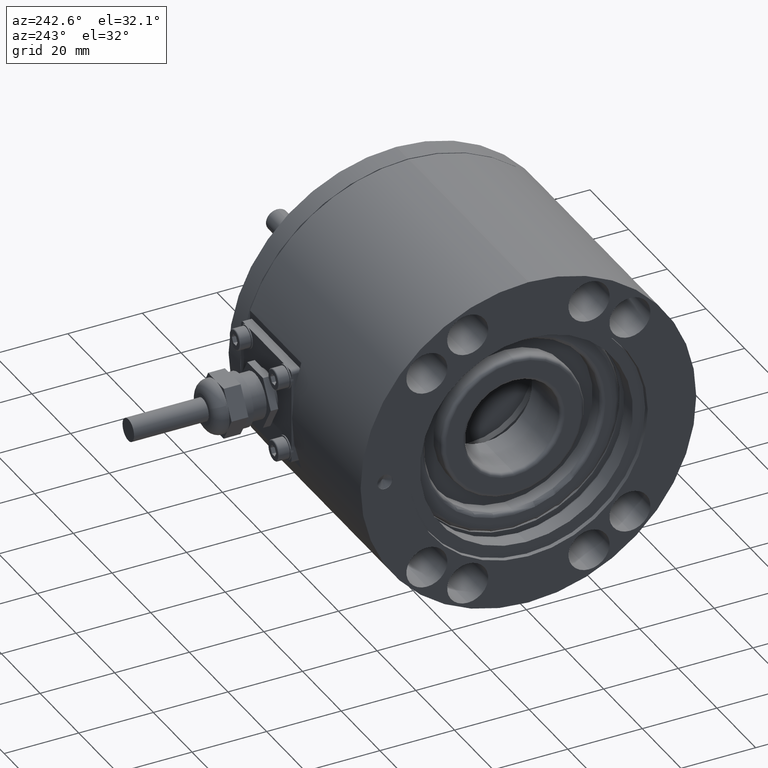
[diagram: clean part render]
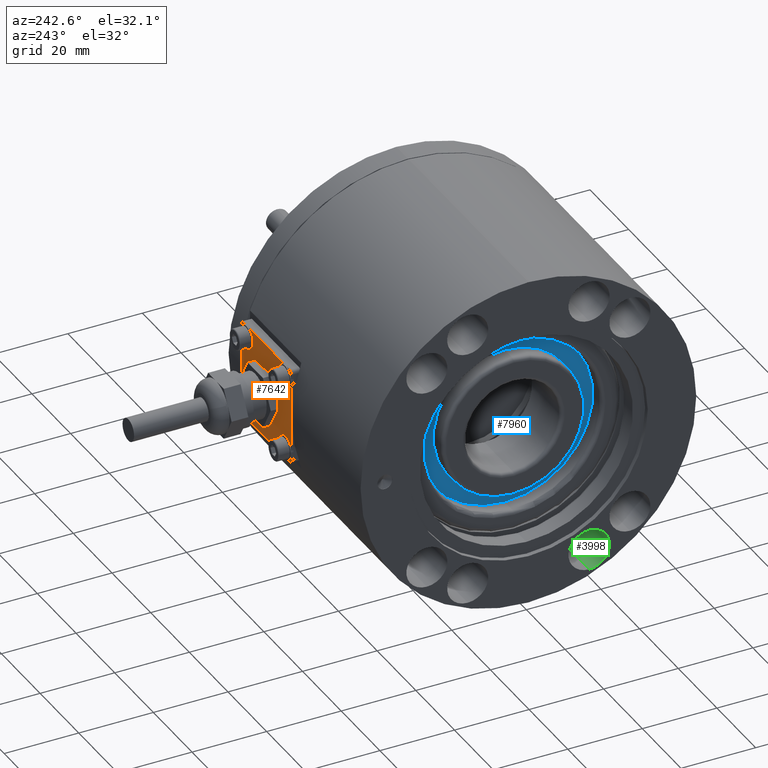
[diagram: same view with three faces highlighted in distinct colors, each labeled with its STEP entity id]
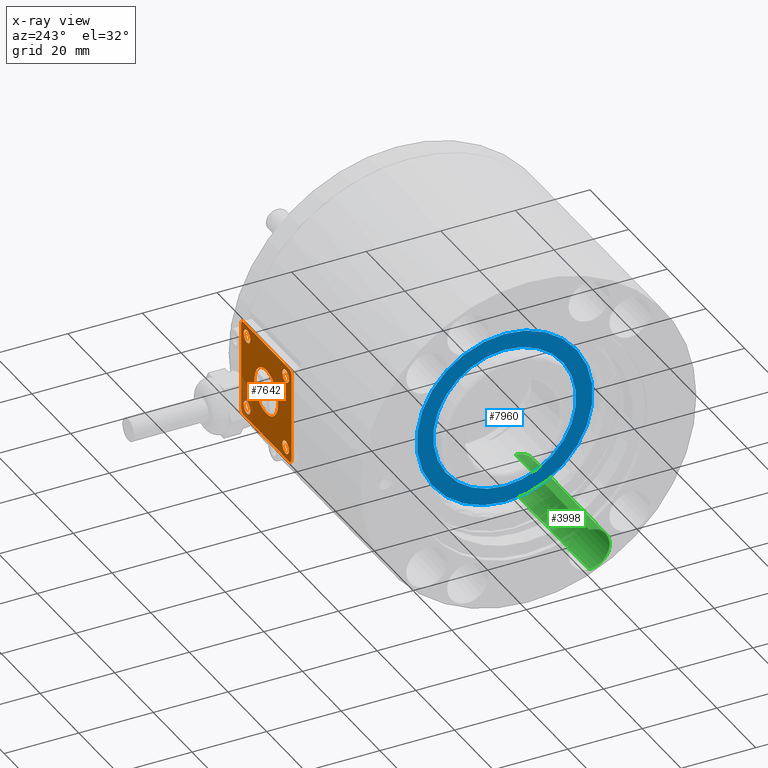
[diagram: x-ray of the same camera — body ghosted, the three highlighted faces saturated]
A machine part, auxiliary view with three faces highlighted in distinct colors.
The next image is the same camera in x-ray (body ghosted, the three faces saturated) — at least one of them is partly hidden behind the body in this view.
Their STEP definitions:

[orange] entity #7642 — the highlighted planar face has unit normal (0, -1, 0).
#121 = EDGE_CURVE ( 'NONE', #182, #11927, #5776, .T. ) ;
#123 = CARTESIAN_POINT ( 'NONE',  ( -13.00000000000000178, 2.500000000000000000, 13.00000000000000000 ) ) ;
#131 = VECTOR ( 'NONE', #6193, 1000.000000000000000 ) ;
#137 = CARTESIAN_POINT ( 'NONE',  ( 0.000000000000000000, 2.499999999999999556, 0.000000000000000000 ) ) ;
#182 = VERTEX_POINT ( 'NONE', #2924 ) ;
#183 = DIRECTION ( 'NONE',  ( -0.000000000000000000, 1.000000000000000000, -0.000000000000000000 ) ) ;
#194 = VERTEX_POINT ( 'NONE', #10874 ) ;
#224 = AXIS2_PLACEMENT_3D ( 'NONE', #10218, #9118, #11181 ) ;
#296 = DIRECTION ( 'NONE',  ( 0.000000000000000000, 0.000000000000000000, 1.000000000000000000 ) ) ;
#697 = LINE ( 'NONE', #123, #9123 ) ;
#700 = VERTEX_POINT ( 'NONE', #8213 ) ;
#716 = EDGE_CURVE ( 'NONE', #2170, #9778, #6384, .T. ) ;
#806 = ORIENTED_EDGE ( 'NONE', *, *, #10214, .F. ) ;
#841 = DIRECTION ( 'NONE',  ( -0.000000000000000000, 1.000000000000000000, -0.000000000000000000 ) ) ;
#902 = EDGE_LOOP ( 'NONE', ( #8514, #3500, #12865, #10524, #8346, #7243, #2664, #12493 ) ) ;
#915 = AXIS2_PLACEMENT_3D ( 'NONE', #7581, #8578, #3451 ) ;
#1004 = VERTEX_POINT ( 'NONE', #9812 ) ;
#1045 = DIRECTION ( 'NONE',  ( -0.000000000000000000, 1.000000000000000000, -0.000000000000000000 ) ) ;
#1071 = CIRCLE ( 'NONE', #3214, 6.099999999999999645 ) ;
#1139 = DIRECTION ( 'NONE',  ( -0.000000000000000000, -0.000000000000000000, 1.000000000000000000 ) ) ;
#1195 = VECTOR ( 'NONE', #9218, 1000.000000000000000 ) ;
#1421 = CIRCLE ( 'NONE', #915, 1.699999999999996625 ) ;
#1454 = DIRECTION ( 'NONE',  ( 0.000000000000000000, -1.000000000000000000, 0.000000000000000000 ) ) ;
#1541 = DIRECTION ( 'NONE',  ( 0.000000000000000000, 0.000000000000000000, 1.000000000000000000 ) ) ;
#1687 = VERTEX_POINT ( 'NONE', #10969 ) ;
#1751 = EDGE_CURVE ( 'NONE', #7032, #2843, #6198, .T. ) ;
#1771 = AXIS2_PLACEMENT_3D ( 'NONE', #11382, #11430, #12346 ) ;
#1956 = DIRECTION ( 'NONE',  ( 0.000000000000000000, 0.000000000000000000, 1.000000000000000000 ) ) ;
#2006 = DIRECTION ( 'NONE',  ( 0.000000000000000000, 0.000000000000000000, 1.000000000000000000 ) ) ;
#2064 = CARTESIAN_POINT ( 'NONE',  ( 12.99999999999999822, 2.500000000000000000, 13.00000000000000178 ) ) ;
#2077 = CIRCLE ( 'NONE', #9001, 0.9999999999999991118 ) ;
#2170 = VERTEX_POINT ( 'NONE', #2949 ) ;
#2477 = EDGE_CURVE ( 'NONE', #700, #194, #11213, .T. ) ;
#2519 = ORIENTED_EDGE ( 'NONE', *, *, #4530, .F. ) ;
#2596 = CARTESIAN_POINT ( 'NONE',  ( -12.00000000000000000, 2.500000000000000000, 13.00000000000000000 ) ) ;
#2664 = ORIENTED_EDGE ( 'NONE', *, *, #8667, .T. ) ;
#2673 = VERTEX_POINT ( 'NONE', #12394 ) ;
#2683 = CIRCLE ( 'NONE', #4496, 1.000000000000000888 ) ;
#2843 = VERTEX_POINT ( 'NONE', #5715 ) ;
#2885 = AXIS2_PLACEMENT_3D ( 'NONE', #7074, #1045, #1956 ) ;
#2904 = VERTEX_POINT ( 'NONE', #4859 ) ;
#2924 = CARTESIAN_POINT ( 'NONE',  ( 13.00000000000000000, 2.500000000000000000, -12.00000000000000000 ) ) ;
#2927 = AXIS2_PLACEMENT_3D ( 'NONE', #9674, #4378, #7416 ) ;
#2949 = CARTESIAN_POINT ( 'NONE',  ( 7.470345474798854293E-16, 2.499999999999999556, -6.099999999999999645 ) ) ;
#3125 = EDGE_CURVE ( 'NONE', #1687, #182, #6349, .T. ) ;
#3214 = AXIS2_PLACEMENT_3D ( 'NONE', #137, #183, #2006 ) ;
#3243 = ORIENTED_EDGE ( 'NONE', *, *, #6490, .F. ) ;
#3328 = CIRCLE ( 'NONE', #5262, 1.699999999999996625 ) ;
#3346 = CARTESIAN_POINT ( 'NONE',  ( -10.00000000000000000, 2.500000000000000000, -9.999999999999998224 ) ) ;
#3451 = DIRECTION ( 'NONE',  ( 0.000000000000000000, 0.000000000000000000, 1.000000000000000000 ) ) ;
#3494 = DIRECTION ( 'NONE',  ( 0.000000000000000000, 0.000000000000000000, 1.000000000000000000 ) ) ;
#3500 = ORIENTED_EDGE ( 'NONE', *, *, #6072, .T. ) ;
#3580 = CARTESIAN_POINT ( 'NONE',  ( -10.00000000000000000, 2.500000000000000000, 10.00000000000000000 ) ) ;
#3666 = CARTESIAN_POINT ( 'NONE',  ( 0.000000000000000000, 2.499999999999999556, 6.099999999999999645 ) ) ;
#3797 = CIRCLE ( 'NONE', #4223, 1.699999999999996625 ) ;
#3887 = VERTEX_POINT ( 'NONE', #10414 ) ;
#4167 = DIRECTION ( 'NONE',  ( 0.000000000000000000, 0.000000000000000000, 1.000000000000000000 ) ) ;
#4223 = AXIS2_PLACEMENT_3D ( 'NONE', #3580, #8662, #1541 ) ;
#4378 = DIRECTION ( 'NONE',  ( -0.000000000000000000, 1.000000000000000000, -0.000000000000000000 ) ) ;
#4496 = AXIS2_PLACEMENT_3D ( 'NONE', #12941, #6837, #12897 ) ;
#4504 = EDGE_LOOP ( 'NONE', ( #9936, #7967 ) ) ;
#4530 = EDGE_CURVE ( 'NONE', #2673, #2904, #3797, .T. ) ;
#4625 = PLANE ( 'NONE',  #8007 ) ;
#4714 = EDGE_CURVE ( 'NONE', #11568, #7527, #2077, .T. ) ;
#4859 = CARTESIAN_POINT ( 'NONE',  ( -10.00000000000000000, 2.500000000000000000, 11.69999999999999751 ) ) ;
#5006 = VERTEX_POINT ( 'NONE', #10223 ) ;
#5262 = AXIS2_PLACEMENT_3D ( 'NONE', #9034, #12225, #4167 ) ;
#5701 = EDGE_LOOP ( 'NONE', ( #12242, #10698 ) ) ;
#5715 = CARTESIAN_POINT ( 'NONE',  ( 11.99999999999998934, 2.500000000000000000, 13.00000000000000178 ) ) ;
#5776 = CIRCLE ( 'NONE', #2927, 1.000000000000000888 ) ;
#5991 = AXIS2_PLACEMENT_3D ( 'NONE', #3346, #9205, #296 ) ;
#6033 = CIRCLE ( 'NONE', #224, 1.699999999999996625 ) ;
#6072 = EDGE_CURVE ( 'NONE', #12232, #7032, #2683, .T. ) ;
#6193 = DIRECTION ( 'NONE',  ( -1.000000000000000000, -0.000000000000000000, -0.000000000000000000 ) ) ;
#6198 = LINE ( 'NONE', #9302, #1195 ) ;
#6274 = EDGE_LOOP ( 'NONE', ( #7636, #9753 ) ) ;
#6349 = LINE ( 'NONE', #2064, #9785 ) ;
#6384 = CIRCLE ( 'NONE', #1771, 6.099999999999999645 ) ;
#6442 = CARTESIAN_POINT ( 'NONE',  ( 0.000000000000000000, 2.500000000000000000, 0.000000000000000000 ) ) ;
#6490 = EDGE_CURVE ( 'NONE', #1004, #5006, #1421, .T. ) ;
#6568 = CARTESIAN_POINT ( 'NONE',  ( 11.99999999999999645, 2.500000000000000000, 12.00000000000000178 ) ) ;
#6657 = CARTESIAN_POINT ( 'NONE',  ( -13.00000000000000178, 2.500000000000000000, 12.00000000000000000 ) ) ;
#6684 = FACE_BOUND ( 'NONE', #7007, .T. ) ;
#6837 = DIRECTION ( 'NONE',  ( -0.000000000000000000, 1.000000000000000000, -0.000000000000000000 ) ) ;
#6918 = CARTESIAN_POINT ( 'NONE',  ( -12.00000000000000000, 2.500000000000000000, -13.00000000000000000 ) ) ;
#6985 = CIRCLE ( 'NONE', #8516, 0.9999999999999991118 ) ;
#6992 = AXIS2_PLACEMENT_3D ( 'NONE', #8530, #7483, #3494 ) ;
#7007 = EDGE_LOOP ( 'NONE', ( #806, #2519 ) ) ;
#7032 = VERTEX_POINT ( 'NONE', #2596 ) ;
#7074 = CARTESIAN_POINT ( 'NONE',  ( -10.00000000000000000, 2.500000000000000000, -9.999999999999998224 ) ) ;
#7243 = ORIENTED_EDGE ( 'NONE', *, *, #121, .T. ) ;
#7416 = DIRECTION ( 'NONE',  ( 0.000000000000000000, 0.000000000000000000, -1.000000000000000000 ) ) ;
#7483 = DIRECTION ( 'NONE',  ( -0.000000000000000000, 1.000000000000000000, -0.000000000000000000 ) ) ;
#7527 = VERTEX_POINT ( 'NONE', #12327 ) ;
#7581 = CARTESIAN_POINT ( 'NONE',  ( 10.00000000000000000, 2.500000000000000000, -9.999999999999998224 ) ) ;
#7606 = DIRECTION ( 'NONE',  ( 0.000000000000000000, 0.000000000000000000, 1.000000000000000000 ) ) ;
#7636 = ORIENTED_EDGE ( 'NONE', *, *, #9328, .F. ) ;
#7642 = ADVANCED_FACE ( 'NONE', ( #12462, #12760, #6684, #9497, #9644, #9311 ), #4625, .F. ) ;
#7967 = ORIENTED_EDGE ( 'NONE', *, *, #10537, .F. ) ;
#8007 = AXIS2_PLACEMENT_3D ( 'NONE', #6442, #1454, #11505 ) ;
#8213 = CARTESIAN_POINT ( 'NONE',  ( -10.00000000000000000, 2.500000000000000000, -8.300000000000002487 ) ) ;
#8346 = ORIENTED_EDGE ( 'NONE', *, *, #3125, .T. ) ;
#8433 = LINE ( 'NONE', #8980, #131 ) ;
#8514 = ORIENTED_EDGE ( 'NONE', *, *, #12534, .T. ) ;
#8516 = AXIS2_PLACEMENT_3D ( 'NONE', #6568, #10482, #9490 ) ;
#8530 = CARTESIAN_POINT ( 'NONE',  ( -10.00000000000000000, 2.500000000000000000, 10.00000000000000000 ) ) ;
#8553 = CIRCLE ( 'NONE', #2885, 1.699999999999996625 ) ;
#8578 = DIRECTION ( 'NONE',  ( -0.000000000000000000, 1.000000000000000000, -0.000000000000000000 ) ) ;
#8662 = DIRECTION ( 'NONE',  ( -0.000000000000000000, 1.000000000000000000, -0.000000000000000000 ) ) ;
#8667 = EDGE_CURVE ( 'NONE', #11927, #11568, #8433, .T. ) ;
#8980 = CARTESIAN_POINT ( 'NONE',  ( -13.00000000000000178, 2.500000000000000000, -13.00000000000000000 ) ) ;
#9001 = AXIS2_PLACEMENT_3D ( 'NONE', #12841, #841, #12721 ) ;
#9034 = CARTESIAN_POINT ( 'NONE',  ( 10.00000000000000000, 2.500000000000000000, 10.00000000000000178 ) ) ;
#9059 = DIRECTION ( 'NONE',  ( 6.672013369141565463E-17, 0.000000000000000000, -1.000000000000000000 ) ) ;
#9100 = ORIENTED_EDGE ( 'NONE', *, *, #12798, .F. ) ;
#9118 = DIRECTION ( 'NONE',  ( -0.000000000000000000, 1.000000000000000000, -0.000000000000000000 ) ) ;
#9123 = VECTOR ( 'NONE', #1139, 1000.000000000000000 ) ;
#9205 = DIRECTION ( 'NONE',  ( -0.000000000000000000, 1.000000000000000000, -0.000000000000000000 ) ) ;
#9218 = DIRECTION ( 'NONE',  ( 1.000000000000000000, 0.000000000000000000, 6.672013369141566696E-17 ) ) ;
#9263 = CARTESIAN_POINT ( 'NONE',  ( 11.99999999999999645, 2.500000000000000000, -13.00000000000000000 ) ) ;
#9302 = CARTESIAN_POINT ( 'NONE',  ( -13.00000000000000178, 2.500000000000000000, 13.00000000000000000 ) ) ;
#9311 = FACE_BOUND ( 'NONE', #10984, .T. ) ;
#9328 = EDGE_CURVE ( 'NONE', #9778, #2170, #1071, .T. ) ;
#9490 = DIRECTION ( 'NONE',  ( 0.000000000000000000, 0.000000000000000000, -1.000000000000000000 ) ) ;
#9497 = FACE_OUTER_BOUND ( 'NONE', #902, .T. ) ;
#9644 = FACE_BOUND ( 'NONE', #4504, .T. ) ;
#9674 = CARTESIAN_POINT ( 'NONE',  ( 11.99999999999999645, 2.500000000000000000, -12.00000000000000000 ) ) ;
#9753 = ORIENTED_EDGE ( 'NONE', *, *, #716, .F. ) ;
#9778 = VERTEX_POINT ( 'NONE', #3666 ) ;
#9785 = VECTOR ( 'NONE', #9059, 1000.000000000000000 ) ;
#9812 = CARTESIAN_POINT ( 'NONE',  ( 10.00000000000000000, 2.500000000000000000, -11.69999999999999574 ) ) ;
#9936 = ORIENTED_EDGE ( 'NONE', *, *, #2477, .F. ) ;
#10042 = CARTESIAN_POINT ( 'NONE',  ( 10.00000000000000000, 2.500000000000000000, 11.69999999999999929 ) ) ;
#10175 = EDGE_CURVE ( 'NONE', #2843, #1687, #6985, .T. ) ;
#10214 = EDGE_CURVE ( 'NONE', #2904, #2673, #12764, .T. ) ;
#10218 = CARTESIAN_POINT ( 'NONE',  ( 10.00000000000000000, 2.500000000000000000, 10.00000000000000178 ) ) ;
#10223 = CARTESIAN_POINT ( 'NONE',  ( 10.00000000000000000, 2.500000000000000000, -8.300000000000002487 ) ) ;
#10414 = CARTESIAN_POINT ( 'NONE',  ( 10.00000000000000000, 2.500000000000000000, 8.300000000000006040 ) ) ;
#10482 = DIRECTION ( 'NONE',  ( -0.000000000000000000, 1.000000000000000000, -0.000000000000000000 ) ) ;
#10520 = CIRCLE ( 'NONE', #11623, 1.699999999999996625 ) ;
#10524 = ORIENTED_EDGE ( 'NONE', *, *, #10175, .T. ) ;
#10537 = EDGE_CURVE ( 'NONE', #194, #700, #8553, .T. ) ;
#10548 = VERTEX_POINT ( 'NONE', #10042 ) ;
#10650 = CARTESIAN_POINT ( 'NONE',  ( 10.00000000000000000, 2.500000000000000000, -9.999999999999998224 ) ) ;
#10698 = ORIENTED_EDGE ( 'NONE', *, *, #10716, .F. ) ;
#10716 = EDGE_CURVE ( 'NONE', #3887, #10548, #6033, .T. ) ;
#10874 = CARTESIAN_POINT ( 'NONE',  ( -10.00000000000000000, 2.500000000000000000, -11.69999999999999574 ) ) ;
#10969 = CARTESIAN_POINT ( 'NONE',  ( 12.99999999999999822, 2.500000000000000000, 12.00000000000000178 ) ) ;
#10984 = EDGE_LOOP ( 'NONE', ( #9100, #3243 ) ) ;
#11181 = DIRECTION ( 'NONE',  ( 0.000000000000000000, 0.000000000000000000, 1.000000000000000000 ) ) ;
#11213 = CIRCLE ( 'NONE', #5991, 1.699999999999996625 ) ;
#11382 = CARTESIAN_POINT ( 'NONE',  ( 0.000000000000000000, 2.499999999999999556, 0.000000000000000000 ) ) ;
#11430 = DIRECTION ( 'NONE',  ( -0.000000000000000000, 1.000000000000000000, -0.000000000000000000 ) ) ;
#11505 = DIRECTION ( 'NONE',  ( 0.000000000000000000, -0.000000000000000000, -1.000000000000000000 ) ) ;
#11568 = VERTEX_POINT ( 'NONE', #6918 ) ;
#11623 = AXIS2_PLACEMENT_3D ( 'NONE', #10650, #12485, #7606 ) ;
#11927 = VERTEX_POINT ( 'NONE', #9263 ) ;
#12225 = DIRECTION ( 'NONE',  ( -0.000000000000000000, 1.000000000000000000, -0.000000000000000000 ) ) ;
#12232 = VERTEX_POINT ( 'NONE', #6657 ) ;
#12242 = ORIENTED_EDGE ( 'NONE', *, *, #12436, .F. ) ;
#12327 = CARTESIAN_POINT ( 'NONE',  ( -13.00000000000000178, 2.500000000000000000, -11.99999999999999467 ) ) ;
#12346 = DIRECTION ( 'NONE',  ( 0.000000000000000000, 0.000000000000000000, 1.000000000000000000 ) ) ;
#12394 = CARTESIAN_POINT ( 'NONE',  ( -10.00000000000000000, 2.500000000000000000, 8.300000000000004263 ) ) ;
#12436 = EDGE_CURVE ( 'NONE', #10548, #3887, #3328, .T. ) ;
#12462 = FACE_BOUND ( 'NONE', #6274, .T. ) ;
#12485 = DIRECTION ( 'NONE',  ( -0.000000000000000000, 1.000000000000000000, -0.000000000000000000 ) ) ;
#12493 = ORIENTED_EDGE ( 'NONE', *, *, #4714, .T. ) ;
#12534 = EDGE_CURVE ( 'NONE', #7527, #12232, #697, .T. ) ;
#12721 = DIRECTION ( 'NONE',  ( 0.000000000000000000, 0.000000000000000000, -1.000000000000000000 ) ) ;
#12760 = FACE_BOUND ( 'NONE', #5701, .T. ) ;
#12764 = CIRCLE ( 'NONE', #6992, 1.699999999999996625 ) ;
#12798 = EDGE_CURVE ( 'NONE', #5006, #1004, #10520, .T. ) ;
#12841 = CARTESIAN_POINT ( 'NONE',  ( -12.00000000000000000, 2.500000000000000000, -12.00000000000000178 ) ) ;
#12865 = ORIENTED_EDGE ( 'NONE', *, *, #1751, .T. ) ;
#12897 = DIRECTION ( 'NONE',  ( 0.000000000000000000, 0.000000000000000000, -1.000000000000000000 ) ) ;
#12941 = CARTESIAN_POINT ( 'NONE',  ( -12.00000000000000000, 2.500000000000000000, 12.00000000000000000 ) ) ;

[blue] entity #7960 — the highlighted planar face has unit normal (1, 0, 0).
#898 = DIRECTION ( 'NONE',  ( 1.000000000000000000, -0.000000000000000000, -0.000000000000000000 ) ) ;
#961 = VERTEX_POINT ( 'NONE', #7812 ) ;
#1026 = AXIS2_PLACEMENT_3D ( 'NONE', #12190, #2313, #10136 ) ;
#1109 = FACE_OUTER_BOUND ( 'NONE', #4534, .T. ) ;
#1185 = DIRECTION ( 'NONE',  ( 1.000000000000000000, -0.000000000000000000, -0.000000000000000000 ) ) ;
#1592 = ORIENTED_EDGE ( 'NONE', *, *, #1736, .F. ) ;
#1736 = EDGE_CURVE ( 'NONE', #2539, #961, #7137, .T. ) ;
#2177 = CARTESIAN_POINT ( 'NONE',  ( 4.690000000000001279, 23.60000000000000142, 0.000000000000000000 ) ) ;
#2313 = DIRECTION ( 'NONE',  ( 1.000000000000000000, -0.000000000000000000, -0.000000000000000000 ) ) ;
#2539 = VERTEX_POINT ( 'NONE', #6373 ) ;
#3137 = DIRECTION ( 'NONE',  ( 1.000000000000000000, 0.000000000000000000, -0.000000000000000000 ) ) ;
#4534 = EDGE_LOOP ( 'NONE', ( #1592, #6552 ) ) ;
#4877 = CIRCLE ( 'NONE', #9098, 19.14999999999999858 ) ;
#4902 = EDGE_CURVE ( 'NONE', #5347, #8403, #10221, .T. ) ;
#4904 = CARTESIAN_POINT ( 'NONE',  ( 4.690000000000001279, 0.000000000000000000, 0.000000000000000000 ) ) ;
#5157 = DIRECTION ( 'NONE',  ( 0.000000000000000000, 0.000000000000000000, -1.000000000000000000 ) ) ;
#5287 = EDGE_CURVE ( 'NONE', #8403, #5347, #4877, .T. ) ;
#5347 = VERTEX_POINT ( 'NONE', #9819 ) ;
#5348 = AXIS2_PLACEMENT_3D ( 'NONE', #9959, #1185, #5157 ) ;
#5491 = FACE_BOUND ( 'NONE', #10185, .T. ) ;
#5633 = DIRECTION ( 'NONE',  ( 0.000000000000000000, 0.000000000000000000, -1.000000000000000000 ) ) ;
#5813 = ORIENTED_EDGE ( 'NONE', *, *, #4902, .T. ) ;
#5850 = CARTESIAN_POINT ( 'NONE',  ( 4.690000000000001279, 0.000000000000000000, -19.14999999999999858 ) ) ;
#6373 = CARTESIAN_POINT ( 'NONE',  ( 4.690000000000001279, 0.000000000000000000, -23.60000000000000142 ) ) ;
#6474 = ORIENTED_EDGE ( 'NONE', *, *, #5287, .T. ) ;
#6552 = ORIENTED_EDGE ( 'NONE', *, *, #7118, .F. ) ;
#7118 = EDGE_CURVE ( 'NONE', #961, #2539, #12825, .T. ) ;
#7137 = CIRCLE ( 'NONE', #1026, 23.60000000000000142 ) ;
#7812 = CARTESIAN_POINT ( 'NONE',  ( 4.690000000000001279, 2.890166445987753677E-15, 23.60000000000000142 ) ) ;
#7960 = ADVANCED_FACE ( 'NONE', ( #1109, #5491 ), #11136, .F. ) ;
#8403 = VERTEX_POINT ( 'NONE', #5850 ) ;
#9098 = AXIS2_PLACEMENT_3D ( 'NONE', #9657, #11613, #5633 ) ;
#9196 = AXIS2_PLACEMENT_3D ( 'NONE', #4904, #898, #11899 ) ;
#9657 = CARTESIAN_POINT ( 'NONE',  ( 4.690000000000001279, 0.000000000000000000, 0.000000000000000000 ) ) ;
#9819 = CARTESIAN_POINT ( 'NONE',  ( 4.690000000000001279, 2.345198620367181006E-15, 19.14999999999999858 ) ) ;
#9959 = CARTESIAN_POINT ( 'NONE',  ( 4.690000000000001279, 0.000000000000000000, 0.000000000000000000 ) ) ;
#10136 = DIRECTION ( 'NONE',  ( 0.000000000000000000, 0.000000000000000000, -1.000000000000000000 ) ) ;
#10185 = EDGE_LOOP ( 'NONE', ( #6474, #5813 ) ) ;
#10221 = CIRCLE ( 'NONE', #5348, 19.14999999999999858 ) ;
#11136 = PLANE ( 'NONE',  #12758 ) ;
#11613 = DIRECTION ( 'NONE',  ( 1.000000000000000000, -0.000000000000000000, -0.000000000000000000 ) ) ;
#11899 = DIRECTION ( 'NONE',  ( 0.000000000000000000, 0.000000000000000000, -1.000000000000000000 ) ) ;
#12109 = DIRECTION ( 'NONE',  ( -0.000000000000000000, 0.000000000000000000, -1.000000000000000000 ) ) ;
#12190 = CARTESIAN_POINT ( 'NONE',  ( 4.690000000000001279, 0.000000000000000000, 0.000000000000000000 ) ) ;
#12758 = AXIS2_PLACEMENT_3D ( 'NONE', #2177, #3137, #12109 ) ;
#12825 = CIRCLE ( 'NONE', #9196, 23.60000000000000142 ) ;

[green] entity #3998 — the highlighted cylindrical surface (edge-blend (fillet) strip) has radius 5.5 mm, axis along (-1, 0, 0).
#420 = ORIENTED_EDGE ( 'NONE', *, *, #11608, .T. ) ;
#1297 = AXIS2_PLACEMENT_3D ( 'NONE', #6252, #4126, #8224 ) ;
#1320 = LINE ( 'NONE', #6822, #6329 ) ;
#1957 = ORIENTED_EDGE ( 'NONE', *, *, #10952, .T. ) ;
#2038 = CARTESIAN_POINT ( 'NONE',  ( 24.00000000000000000, -16.27080307701697137, 29.39284980091101573 ) ) ;
#2509 = CARTESIAN_POINT ( 'NONE',  ( 62.00000000000000000, -16.27080307701697137, 34.89284980091100863 ) ) ;
#3882 = DIRECTION ( 'NONE',  ( 0.000000000000000000, 0.000000000000000000, -1.000000000000000000 ) ) ;
#3998 = ADVANCED_FACE ( 'NONE', ( #5080 ), #7117, .F. ) ;
#4040 = AXIS2_PLACEMENT_3D ( 'NONE', #2509, #11595, #4636 ) ;
#4126 = DIRECTION ( 'NONE',  ( 1.000000000000000000, -0.000000000000000000, -0.000000000000000000 ) ) ;
#4241 = VERTEX_POINT ( 'NONE', #12204 ) ;
#4449 = ORIENTED_EDGE ( 'NONE', *, *, #8003, .F. ) ;
#4636 = DIRECTION ( 'NONE',  ( 0.000000000000000000, 0.000000000000000000, -1.000000000000000000 ) ) ;
#4789 = VERTEX_POINT ( 'NONE', #2038 ) ;
#5040 = VERTEX_POINT ( 'NONE', #12187 ) ;
#5080 = FACE_OUTER_BOUND ( 'NONE', #8478, .T. ) ;
#5569 = LINE ( 'NONE', #8858, #12896 ) ;
#5847 = DIRECTION ( 'NONE',  ( 1.000000000000000000, -0.000000000000000000, -0.000000000000000000 ) ) ;
#5867 = VERTEX_POINT ( 'NONE', #7458 ) ;
#6252 = CARTESIAN_POINT ( 'NONE',  ( 24.00000000000000000, -16.27080307701697137, 34.89284980091100863 ) ) ;
#6329 = VECTOR ( 'NONE', #11792, 1000.000000000000000 ) ;
#6822 = CARTESIAN_POINT ( 'NONE',  ( 62.00000000000000000, -16.27080307701697137, 29.39284980091101573 ) ) ;
#7117 = CYLINDRICAL_SURFACE ( 'NONE', #4040, 5.499999999999991118 ) ;
#7458 = CARTESIAN_POINT ( 'NONE',  ( 62.00000000000000000, -16.27080307701697137, 40.39284980091100152 ) ) ;
#7523 = AXIS2_PLACEMENT_3D ( 'NONE', #10847, #9884, #3882 ) ;
#8003 = EDGE_CURVE ( 'NONE', #5040, #4789, #12514, .T. ) ;
#8224 = DIRECTION ( 'NONE',  ( 0.000000000000000000, 0.000000000000000000, -1.000000000000000000 ) ) ;
#8478 = EDGE_LOOP ( 'NONE', ( #4449, #1957, #420, #9103 ) ) ;
#8858 = CARTESIAN_POINT ( 'NONE',  ( 62.00000000000000000, -16.27080307701697137, 40.39284980091100152 ) ) ;
#9103 = ORIENTED_EDGE ( 'NONE', *, *, #12178, .F. ) ;
#9884 = DIRECTION ( 'NONE',  ( 1.000000000000000000, -0.000000000000000000, -0.000000000000000000 ) ) ;
#10082 = CIRCLE ( 'NONE', #7523, 5.499999999999994671 ) ;
#10847 = CARTESIAN_POINT ( 'NONE',  ( 62.00000000000000000, -16.27080307701697137, 34.89284980091100863 ) ) ;
#10952 = EDGE_CURVE ( 'NONE', #5040, #5867, #5569, .T. ) ;
#11595 = DIRECTION ( 'NONE',  ( 1.000000000000000000, -0.000000000000000000, -0.000000000000000000 ) ) ;
#11608 = EDGE_CURVE ( 'NONE', #5867, #4241, #10082, .T. ) ;
#11792 = DIRECTION ( 'NONE',  ( 1.000000000000000000, -0.000000000000000000, -0.000000000000000000 ) ) ;
#12178 = EDGE_CURVE ( 'NONE', #4789, #4241, #1320, .T. ) ;
#12187 = CARTESIAN_POINT ( 'NONE',  ( 24.00000000000000000, -16.27080307701697137, 40.39284980091100152 ) ) ;
#12204 = CARTESIAN_POINT ( 'NONE',  ( 62.00000000000000000, -16.27080307701697137, 29.39284980091101218 ) ) ;
#12514 = CIRCLE ( 'NONE', #1297, 5.499999999999991118 ) ;
#12896 = VECTOR ( 'NONE', #5847, 1000.000000000000000 ) ;